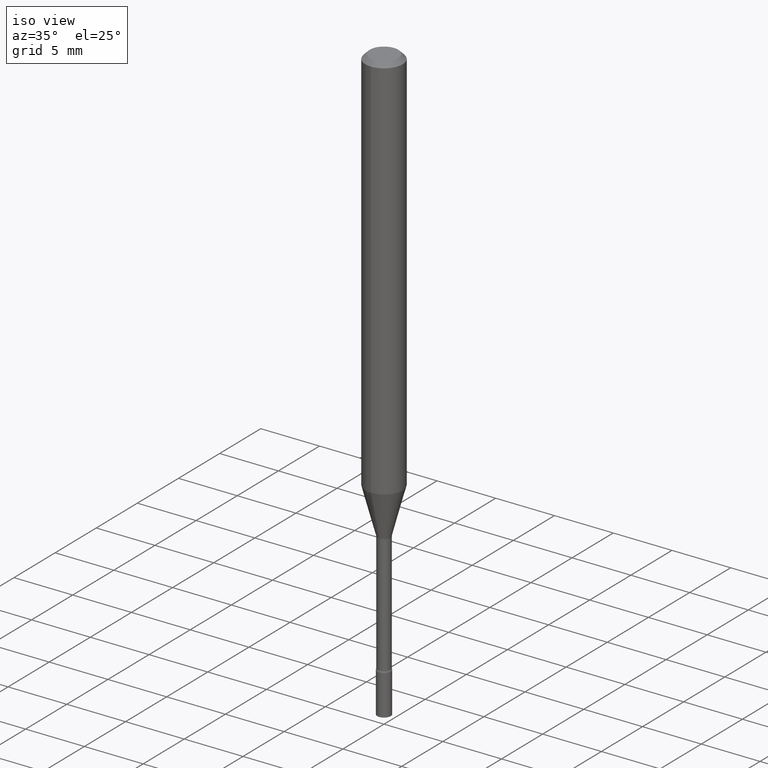
[diagram: clean part render]
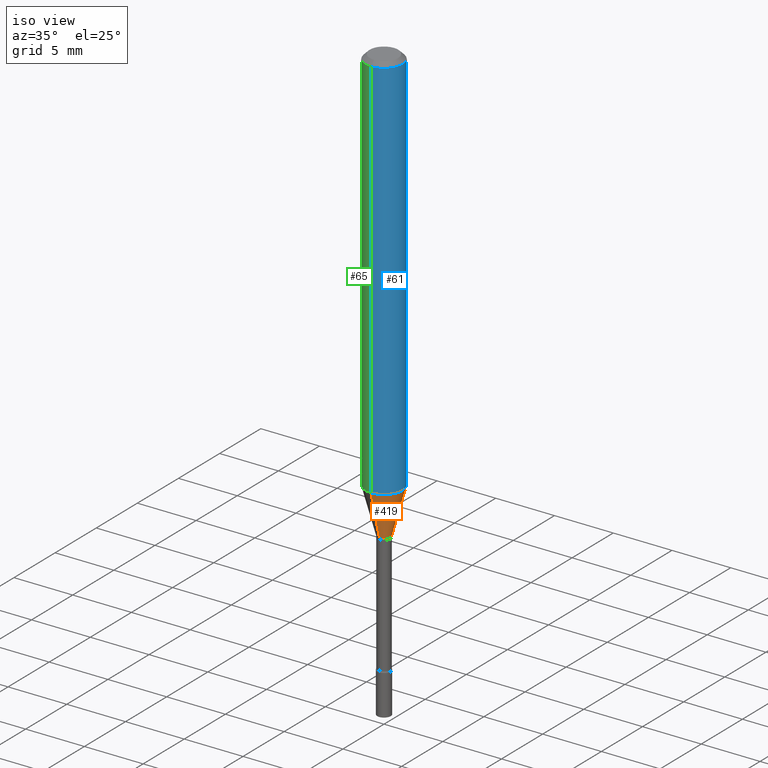
[diagram: same view with three faces highlighted in distinct colors, each labeled with its STEP entity id]
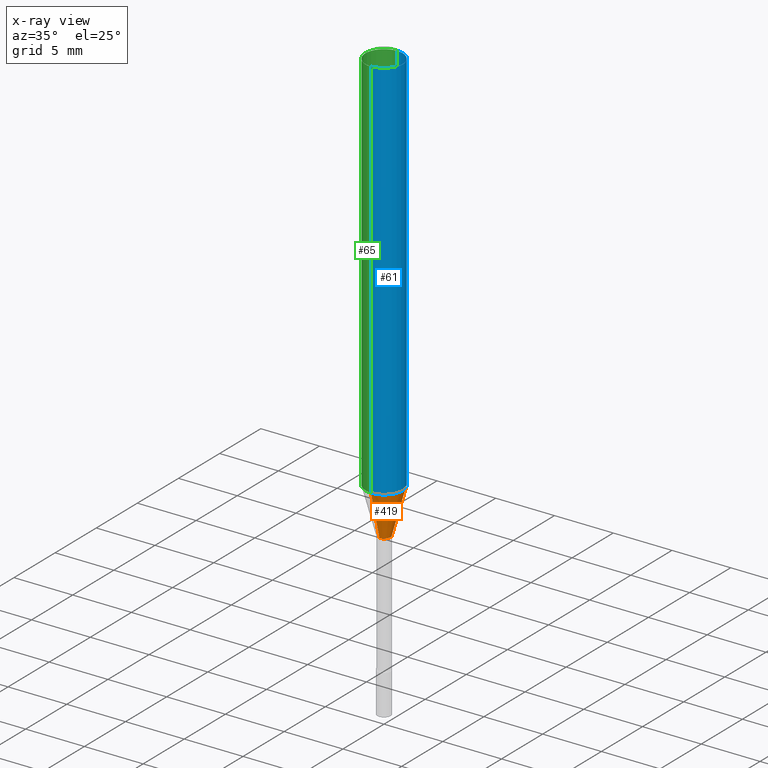
[diagram: x-ray of the same camera — body ghosted, the three highlighted faces saturated]
A machine part, iso view with three faces highlighted in distinct colors.
The next image is the same camera in x-ray (body ghosted, the three faces saturated) — at least one of them is partly hidden behind the body in this view.
Their STEP definitions:

[orange] entity #419 — the highlighted conical surface has half-angle 15 deg.
#33 = CIRCLE ( 'NONE', #71, 0.02166111260566397703 ) ;
#54 = EDGE_CURVE ( 'NONE', #171, #138, #334, .T. ) ;
#71 = AXIS2_PLACEMENT_3D ( 'NONE', #204, #439, #85 ) ;
#85 = DIRECTION ( 'NONE',  ( -6.982962677686266711E-15, -1.000000000000000000, 0.000000000000000000 ) ) ;
#87 = AXIS2_PLACEMENT_3D ( 'NONE', #290, #329, #440 ) ;
#96 = DIRECTION ( 'NONE',  ( -1.807323732225328562E-15, -0.2588190451025179639, 0.9659258262890689783 ) ) ;
#102 = LINE ( 'NONE', #221, #298 ) ;
#113 = CARTESIAN_POINT ( 'NONE',  ( -4.364351673553598685E-16, -0.06250000000000457967, -1.305679699107026970 ) ) ;
#138 = VERTEX_POINT ( 'NONE', #113 ) ;
#171 = VERTEX_POINT ( 'NONE', #312 ) ;
#204 = CARTESIAN_POINT ( 'NONE',  ( 3.565610942176876838E-29, -5.091058550155305219E-15, -1.458092501787273010 ) ) ;
#214 = ORIENTED_EDGE ( 'NONE', *, *, #54, .F. ) ;
#221 = CARTESIAN_POINT ( 'NONE',  ( 1.539114621043963911E-16, 0.02166111260565888735, -1.458092501787273010 ) ) ;
#249 = VERTEX_POINT ( 'NONE', #404 ) ;
#250 = VERTEX_POINT ( 'NONE', #322 ) ;
#257 = CONICAL_SURFACE ( 'NONE', #469, 0.02166111260566397703, 0.2617993877991501295 ) ;
#277 = FACE_OUTER_BOUND ( 'NONE', #328, .T. ) ;
#290 = CARTESIAN_POINT ( 'NONE',  ( 3.192901558994125594E-29, -4.558895809254244772E-15, -1.305679699107027414 ) ) ;
#298 = VECTOR ( 'NONE', #337, 39.37007874015747433 ) ;
#312 = CARTESIAN_POINT ( 'NONE',  ( -1.512587408824754200E-16, -0.02166111260566907018, -1.458092501787273010 ) ) ;
#315 = CIRCLE ( 'NONE', #87, 0.06250000000000000000 ) ;
#322 = CARTESIAN_POINT ( 'NONE',  ( 2.990003359772455890E-16, 0.02166111260565888735, -1.458092501787273010 ) ) ;
#328 = EDGE_LOOP ( 'NONE', ( #416, #491, #373, #214 ) ) ;
#329 = DIRECTION ( 'NONE',  ( -2.445394196737374022E-29, 3.491588183818847574E-15, 1.000000000000000000 ) ) ;
#331 = EDGE_CURVE ( 'NONE', #138, #249, #315, .T. ) ;
#334 = LINE ( 'NONE', #455, #446 ) ;
#337 = DIRECTION ( 'NONE',  ( 1.839019923739599526E-15, 0.2588190451025248473, 0.9659258262890673130 ) ) ;
#339 = EDGE_CURVE ( 'NONE', #171, #250, #33, .T. ) ;
#351 = DIRECTION ( 'NONE',  ( -6.982962677686266711E-15, -1.000000000000000000, 0.000000000000000000 ) ) ;
#373 = ORIENTED_EDGE ( 'NONE', *, *, #331, .F. ) ;
#404 = CARTESIAN_POINT ( 'NONE',  ( 4.440892098500943678E-16, 0.06249999999999542033, -1.305679699107027636 ) ) ;
#416 = ORIENTED_EDGE ( 'NONE', *, *, #339, .T. ) ;
#419 = ADVANCED_FACE ( 'NONE', ( #277 ), #257, .T. ) ;
#423 = CARTESIAN_POINT ( 'NONE',  ( 3.565610942176876838E-29, -5.091058550155305219E-15, -1.458092501787273010 ) ) ;
#430 = DIRECTION ( 'NONE',  ( -2.445394196737374022E-29, 3.491588183818847574E-15, 1.000000000000000000 ) ) ;
#439 = DIRECTION ( 'NONE',  ( -2.445394196737374022E-29, 3.491588183818847574E-15, 1.000000000000000000 ) ) ;
#440 = DIRECTION ( 'NONE',  ( -6.982962677686265922E-15, -1.000000000000000000, 4.370956789862821150E-15 ) ) ;
#446 = VECTOR ( 'NONE', #96, 39.37007874015749564 ) ;
#455 = CARTESIAN_POINT ( 'NONE',  ( -1.512587408824754200E-16, -0.02166111260566907018, -1.458092501787273010 ) ) ;
#469 = AXIS2_PLACEMENT_3D ( 'NONE', #423, #430, #351 ) ;
#491 = ORIENTED_EDGE ( 'NONE', *, *, #500, .T. ) ;
#500 = EDGE_CURVE ( 'NONE', #250, #249, #102, .T. ) ;

[blue] entity #61 — the highlighted cylindrical surface (edge-blend (fillet) strip) has radius 1.5875 mm, axis along (-0, 0, 1).
#34 = CARTESIAN_POINT ( 'NONE',  ( 4.440892098500625669E-16, 0.06250000000000000000, -2.182242614886779734E-16 ) ) ;
#61 = ADVANCED_FACE ( 'NONE', ( #264 ), #103, .T. ) ;
#87 = AXIS2_PLACEMENT_3D ( 'NONE', #290, #329, #440 ) ;
#103 = CYLINDRICAL_SURFACE ( 'NONE', #207, 0.06250000000000000000 ) ;
#113 = CARTESIAN_POINT ( 'NONE',  ( -4.364351673553598685E-16, -0.06250000000000457967, -1.305679699107026970 ) ) ;
#120 = EDGE_CURVE ( 'NONE', #249, #443, #389, .T. ) ;
#138 = VERTEX_POINT ( 'NONE', #113 ) ;
#159 = ORIENTED_EDGE ( 'NONE', *, *, #202, .F. ) ;
#176 = EDGE_CURVE ( 'NONE', #195, #443, #425, .T. ) ;
#177 = ORIENTED_EDGE ( 'NONE', *, *, #331, .T. ) ;
#195 = VERTEX_POINT ( 'NONE', #431 ) ;
#197 = DIRECTION ( 'NONE',  ( -2.445394196737373742E-29, 3.491588183818847574E-15, 1.000000000000000000 ) ) ;
#202 = EDGE_CURVE ( 'NONE', #138, #195, #241, .T. ) ;
#207 = AXIS2_PLACEMENT_3D ( 'NONE', #220, #377, #501 ) ;
#220 = CARTESIAN_POINT ( 'NONE',  ( 0.000000000000000000, 0.000000000000000000, 0.000000000000000000 ) ) ;
#241 = LINE ( 'NONE', #394, #367 ) ;
#249 = VERTEX_POINT ( 'NONE', #404 ) ;
#264 = FACE_OUTER_BOUND ( 'NONE', #401, .T. ) ;
#290 = CARTESIAN_POINT ( 'NONE',  ( 3.192901558994125594E-29, -4.558895809254244772E-15, -1.305679699107027414 ) ) ;
#315 = CIRCLE ( 'NONE', #87, 0.06250000000000000000 ) ;
#329 = DIRECTION ( 'NONE',  ( -2.445394196737374022E-29, 3.491588183818847574E-15, 1.000000000000000000 ) ) ;
#331 = EDGE_CURVE ( 'NONE', #138, #249, #315, .T. ) ;
#342 = AXIS2_PLACEMENT_3D ( 'NONE', #459, #468, #352 ) ;
#352 = DIRECTION ( 'NONE',  ( -6.982962677686265922E-15, -1.000000000000000000, 3.483106191921935554E-15 ) ) ;
#367 = VECTOR ( 'NONE', #197, 39.37007874015748143 ) ;
#377 = DIRECTION ( 'NONE',  ( -2.445394196737374022E-29, 3.491588183818847574E-15, 1.000000000000000000 ) ) ;
#382 = ORIENTED_EDGE ( 'NONE', *, *, #120, .T. ) ;
#389 = LINE ( 'NONE', #34, #470 ) ;
#394 = CARTESIAN_POINT ( 'NONE',  ( -4.364351673553916201E-16, -0.06250000000000000000, 2.182242614886779734E-16 ) ) ;
#395 = CARTESIAN_POINT ( 'NONE',  ( 4.440892098500946636E-16, 0.06249999999999993755, -0.01500000000000024751 ) ) ;
#401 = EDGE_LOOP ( 'NONE', ( #177, #382, #417, #159 ) ) ;
#404 = CARTESIAN_POINT ( 'NONE',  ( 4.440892098500943678E-16, 0.06249999999999542033, -1.305679699107027636 ) ) ;
#417 = ORIENTED_EDGE ( 'NONE', *, *, #176, .F. ) ;
#425 = CIRCLE ( 'NONE', #342, 0.06250000000000000000 ) ;
#431 = CARTESIAN_POINT ( 'NONE',  ( -4.364351673553912750E-16, -0.06250000000000005551, -0.01499999999999981209 ) ) ;
#440 = DIRECTION ( 'NONE',  ( -6.982962677686265922E-15, -1.000000000000000000, 4.370956789862821150E-15 ) ) ;
#443 = VERTEX_POINT ( 'NONE', #395 ) ;
#459 = CARTESIAN_POINT ( 'NONE',  ( 3.668091295106068531E-31, -5.237382275728282109E-17, -0.01500000000000003067 ) ) ;
#461 = DIRECTION ( 'NONE',  ( -2.445394196737373742E-29, 3.491588183818847574E-15, 1.000000000000000000 ) ) ;
#468 = DIRECTION ( 'NONE',  ( -2.445394196737374022E-29, 3.491588183818847574E-15, 1.000000000000000000 ) ) ;
#470 = VECTOR ( 'NONE', #461, 39.37007874015748143 ) ;
#501 = DIRECTION ( 'NONE',  ( -6.982962677686265922E-15, -1.000000000000000000, 3.491588183818847574E-15 ) ) ;

[green] entity #65 — the highlighted cylindrical surface (edge-blend (fillet) strip) has radius 1.5875 mm, axis along (-0, 0, 1).
#4 = ORIENTED_EDGE ( 'NONE', *, *, #378, .F. ) ;
#34 = CARTESIAN_POINT ( 'NONE',  ( 4.440892098500625669E-16, 0.06250000000000000000, -2.182242614886779734E-16 ) ) ;
#35 = CYLINDRICAL_SURFACE ( 'NONE', #49, 0.06250000000000000000 ) ;
#49 = AXIS2_PLACEMENT_3D ( 'NONE', #420, #149, #148 ) ;
#65 = ADVANCED_FACE ( 'NONE', ( #508 ), #35, .T. ) ;
#76 = DIRECTION ( 'NONE',  ( -2.445394196737374022E-29, 3.491588183818847574E-15, 1.000000000000000000 ) ) ;
#84 = EDGE_CURVE ( 'NONE', #249, #138, #317, .T. ) ;
#106 = CIRCLE ( 'NONE', #366, 0.06250000000000000000 ) ;
#113 = CARTESIAN_POINT ( 'NONE',  ( -4.364351673553598685E-16, -0.06250000000000457967, -1.305679699107026970 ) ) ;
#120 = EDGE_CURVE ( 'NONE', #249, #443, #389, .T. ) ;
#128 = AXIS2_PLACEMENT_3D ( 'NONE', #194, #229, #385 ) ;
#138 = VERTEX_POINT ( 'NONE', #113 ) ;
#148 = DIRECTION ( 'NONE',  ( -6.982962677686265922E-15, -1.000000000000000000, 3.491588183818847574E-15 ) ) ;
#149 = DIRECTION ( 'NONE',  ( -2.445394196737374022E-29, 3.491588183818847574E-15, 1.000000000000000000 ) ) ;
#173 = ORIENTED_EDGE ( 'NONE', *, *, #120, .F. ) ;
#194 = CARTESIAN_POINT ( 'NONE',  ( 3.192901558994125594E-29, -4.558895809254244772E-15, -1.305679699107027414 ) ) ;
#195 = VERTEX_POINT ( 'NONE', #431 ) ;
#197 = DIRECTION ( 'NONE',  ( -2.445394196737373742E-29, 3.491588183818847574E-15, 1.000000000000000000 ) ) ;
#202 = EDGE_CURVE ( 'NONE', #138, #195, #241, .T. ) ;
#229 = DIRECTION ( 'NONE',  ( -2.445394196737374022E-29, 3.491588183818847574E-15, 1.000000000000000000 ) ) ;
#241 = LINE ( 'NONE', #394, #367 ) ;
#249 = VERTEX_POINT ( 'NONE', #404 ) ;
#254 = ORIENTED_EDGE ( 'NONE', *, *, #202, .T. ) ;
#262 = EDGE_LOOP ( 'NONE', ( #173, #484, #254, #4 ) ) ;
#317 = CIRCLE ( 'NONE', #128, 0.06250000000000000000 ) ;
#366 = AXIS2_PLACEMENT_3D ( 'NONE', #432, #76, #518 ) ;
#367 = VECTOR ( 'NONE', #197, 39.37007874015748143 ) ;
#378 = EDGE_CURVE ( 'NONE', #443, #195, #106, .T. ) ;
#385 = DIRECTION ( 'NONE',  ( -6.982962677686265922E-15, -1.000000000000000000, 4.370956789862821150E-15 ) ) ;
#389 = LINE ( 'NONE', #34, #470 ) ;
#394 = CARTESIAN_POINT ( 'NONE',  ( -4.364351673553916201E-16, -0.06250000000000000000, 2.182242614886779734E-16 ) ) ;
#395 = CARTESIAN_POINT ( 'NONE',  ( 4.440892098500946636E-16, 0.06249999999999993755, -0.01500000000000024751 ) ) ;
#404 = CARTESIAN_POINT ( 'NONE',  ( 4.440892098500943678E-16, 0.06249999999999542033, -1.305679699107027636 ) ) ;
#420 = CARTESIAN_POINT ( 'NONE',  ( 0.000000000000000000, 0.000000000000000000, 0.000000000000000000 ) ) ;
#431 = CARTESIAN_POINT ( 'NONE',  ( -4.364351673553912750E-16, -0.06250000000000005551, -0.01499999999999981209 ) ) ;
#432 = CARTESIAN_POINT ( 'NONE',  ( 3.668091295106068531E-31, -5.237382275728282109E-17, -0.01500000000000003067 ) ) ;
#443 = VERTEX_POINT ( 'NONE', #395 ) ;
#461 = DIRECTION ( 'NONE',  ( -2.445394196737373742E-29, 3.491588183818847574E-15, 1.000000000000000000 ) ) ;
#470 = VECTOR ( 'NONE', #461, 39.37007874015748143 ) ;
#484 = ORIENTED_EDGE ( 'NONE', *, *, #84, .T. ) ;
#508 = FACE_OUTER_BOUND ( 'NONE', #262, .T. ) ;
#518 = DIRECTION ( 'NONE',  ( -6.982962677686265922E-15, -1.000000000000000000, 3.483106191921935554E-15 ) ) ;